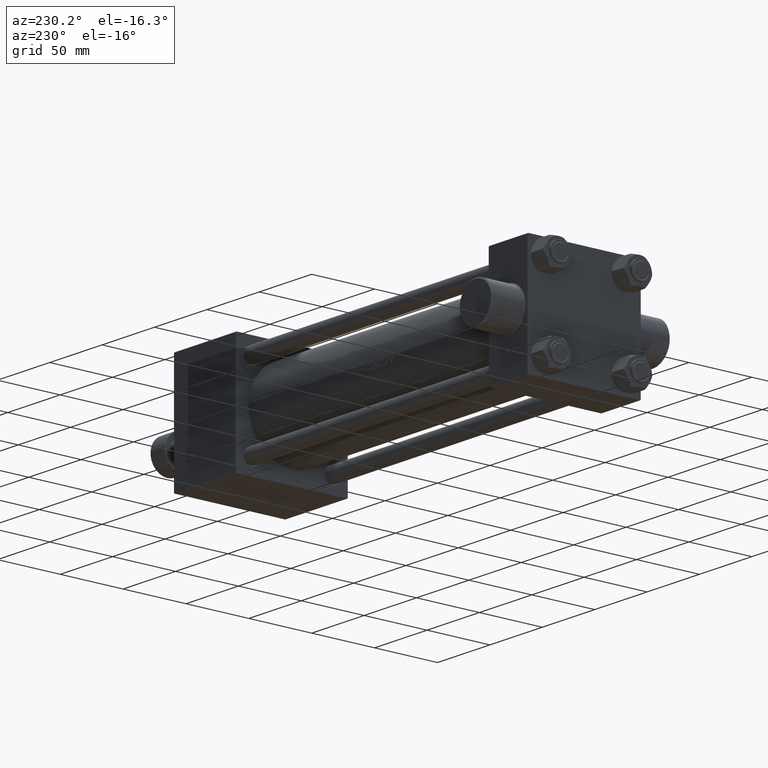
[diagram: clean part render]
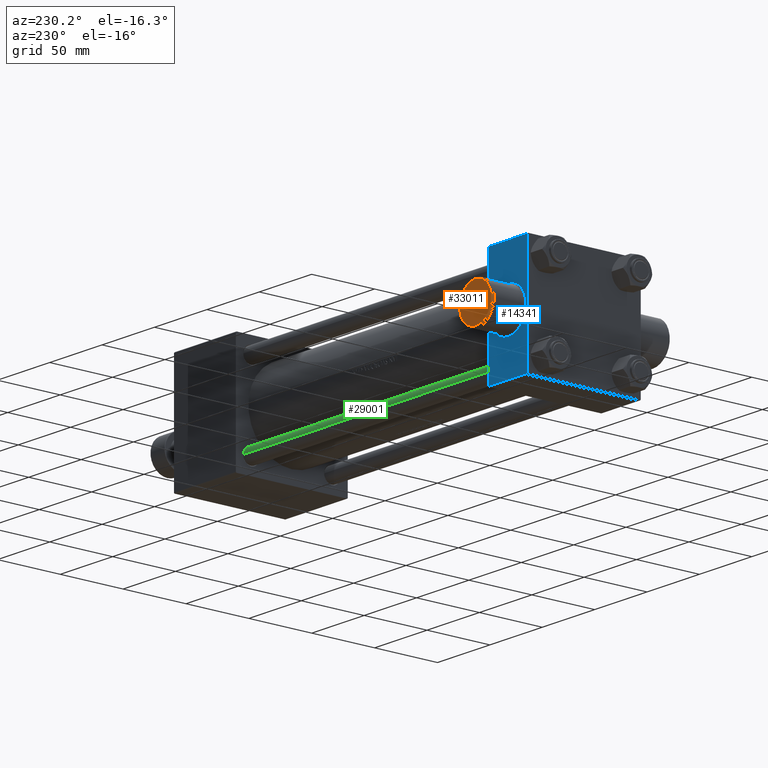
[diagram: same view with three faces highlighted in distinct colors, each labeled with its STEP entity id]
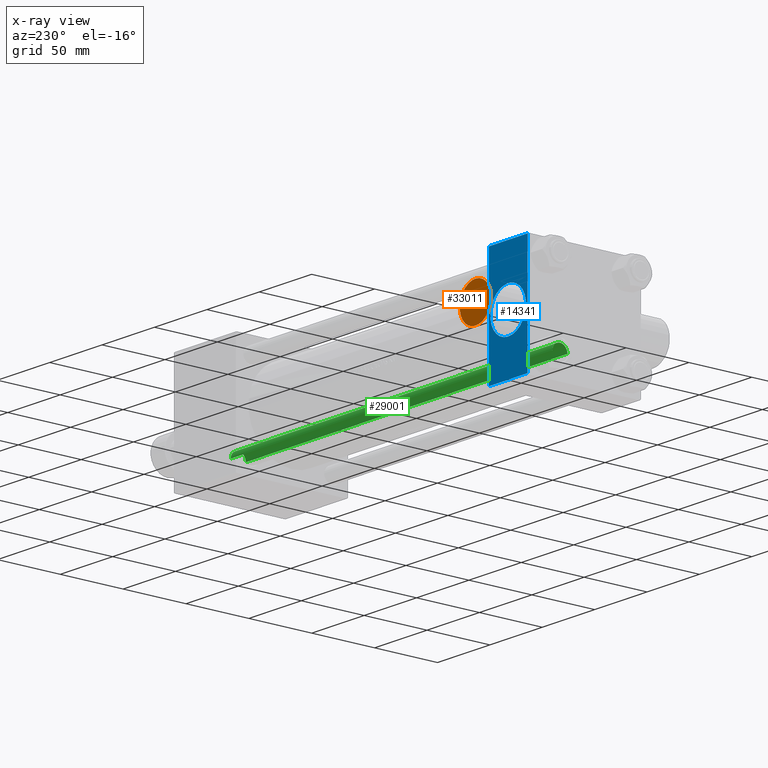
[diagram: x-ray of the same camera — body ghosted, the three highlighted faces saturated]
A machine part, auxiliary view with three faces highlighted in distinct colors.
The next image is the same camera in x-ray (body ghosted, the three faces saturated) — at least one of them is partly hidden behind the body in this view.
Their STEP definitions:

[orange] entity #33011 — the highlighted planar face has unit normal (0, 1, -0).
#117 = CIRCLE ( 'NONE', #36360, 14.99999999999995381 ) ;
#2731 = DIRECTION ( 'NONE',  ( 0.000000000000000000, 1.000000000000000000, -8.673617379884036705E-17 ) ) ;
#6737 = CARTESIAN_POINT ( 'NONE',  ( 18.50000000000000000, 71.00000000000001421, -5.724587470723464989E-15 ) ) ;
#14491 = CARTESIAN_POINT ( 'NONE',  ( 18.50000000000000355, 71.00000000000001421, 14.99999999999994849 ) ) ;
#14664 = CIRCLE ( 'NONE', #43333, 14.99999999999995381 ) ;
#14724 = EDGE_LOOP ( 'NONE', ( #22976, #24390 ) ) ;
#14763 = AXIS2_PLACEMENT_3D ( 'NONE', #6737, #2731, #21161 ) ;
#18132 = VERTEX_POINT ( 'NONE', #36580 ) ;
#19144 = EDGE_CURVE ( 'NONE', #37298, #18132, #117, .T. ) ;
#21161 = DIRECTION ( 'NONE',  ( 0.000000000000000000, -8.673617379884036705E-17, -1.000000000000000000 ) ) ;
#22976 = ORIENTED_EDGE ( 'NONE', *, *, #29235, .T. ) ;
#24390 = ORIENTED_EDGE ( 'NONE', *, *, #19144, .T. ) ;
#28058 = CARTESIAN_POINT ( 'NONE',  ( 18.50000000000000000, 71.00000000000001421, -5.724587470723464989E-15 ) ) ;
#29235 = EDGE_CURVE ( 'NONE', #18132, #37298, #14664, .T. ) ;
#31382 = DIRECTION ( 'NONE',  ( 0.000000000000000000, 1.000000000000000000, -8.673617379884036705E-17 ) ) ;
#31826 = PLANE ( 'NONE',  #14763 ) ;
#33011 = ADVANCED_FACE ( 'NONE', ( #34912 ), #31826, .T. ) ;
#34912 = FACE_OUTER_BOUND ( 'NONE', #14724, .T. ) ;
#35155 = DIRECTION ( 'NONE',  ( 0.000000000000000000, 0.000000000000000000, 1.000000000000000000 ) ) ;
#36360 = AXIS2_PLACEMENT_3D ( 'NONE', #28058, #42469, #35155 ) ;
#36580 = CARTESIAN_POINT ( 'NONE',  ( 18.50000000000000000, 71.00000000000001421, -14.99999999999995914 ) ) ;
#37298 = VERTEX_POINT ( 'NONE', #14491 ) ;
#42010 = CARTESIAN_POINT ( 'NONE',  ( 18.50000000000000000, 71.00000000000001421, -5.724587470723464989E-15 ) ) ;
#42469 = DIRECTION ( 'NONE',  ( 0.000000000000000000, 1.000000000000000000, -8.673617379884036705E-17 ) ) ;
#43333 = AXIS2_PLACEMENT_3D ( 'NONE', #42010, #31382, #45781 ) ;
#45781 = DIRECTION ( 'NONE',  ( 0.000000000000000000, 0.000000000000000000, 1.000000000000000000 ) ) ;

[blue] entity #14341 — the highlighted planar face has unit normal (0, 1, 0).
#1229 = VERTEX_POINT ( 'NONE', #35257 ) ;
#1433 = VERTEX_POINT ( 'NONE', #44186 ) ;
#1494 = DIRECTION ( 'NONE',  ( 0.000000000000000000, 0.000000000000000000, 1.000000000000000000 ) ) ;
#2472 = EDGE_CURVE ( 'NONE', #9400, #5914, #4944, .T. ) ;
#2529 = CARTESIAN_POINT ( 'NONE',  ( 37.00000000000000000, 44.99999999999998579, -44.49999999999995737 ) ) ;
#2845 = FACE_BOUND ( 'NONE', #38691, .T. ) ;
#3771 = CARTESIAN_POINT ( 'NONE',  ( 37.00000000000000000, 44.99999999999998579, 45.00000000000001421 ) ) ;
#3973 = CARTESIAN_POINT ( 'NONE',  ( 18.50000000000000000, 44.99999999999998579, -3.556183125752453755E-15 ) ) ;
#4185 = CARTESIAN_POINT ( 'NONE',  ( 37.00000000000000000, 44.99999999999998579, 44.50000000000001421 ) ) ;
#4944 = CIRCLE ( 'NONE', #26076, 17.00000000000000711 ) ;
#5914 = VERTEX_POINT ( 'NONE', #24140 ) ;
#6829 = LINE ( 'NONE', #46545, #21133 ) ;
#7602 = VECTOR ( 'NONE', #37927, 1000.000000000000000 ) ;
#7818 = VERTEX_POINT ( 'NONE', #19709 ) ;
#8279 = AXIS2_PLACEMENT_3D ( 'NONE', #3771, #28155, #10884 ) ;
#8821 = CARTESIAN_POINT ( 'NONE',  ( 18.50000000000000000, 44.99999999999998579, -3.556183125752453755E-15 ) ) ;
#8876 = CIRCLE ( 'NONE', #44331, 17.00000000000000711 ) ;
#9400 = VERTEX_POINT ( 'NONE', #23858 ) ;
#10832 = ORIENTED_EDGE ( 'NONE', *, *, #42771, .T. ) ;
#10884 = DIRECTION ( 'NONE',  ( 0.000000000000000000, -0.000000000000000000, 1.000000000000000000 ) ) ;
#12619 = DIRECTION ( 'NONE',  ( 0.000000000000000000, -1.000000000000000000, -0.000000000000000000 ) ) ;
#13187 = ORIENTED_EDGE ( 'NONE', *, *, #15882, .T. ) ;
#14341 = ADVANCED_FACE ( 'NONE', ( #2845, #32175 ), #17977, .T. ) ;
#14873 = CARTESIAN_POINT ( 'NONE',  ( 37.00000000000000000, 44.99999999999998579, 45.00000000000001421 ) ) ;
#15882 = EDGE_CURVE ( 'NONE', #46366, #1433, #6829, .T. ) ;
#16411 = VECTOR ( 'NONE', #35457, 1000.000000000000000 ) ;
#17977 = PLANE ( 'NONE',  #8279 ) ;
#18117 = EDGE_CURVE ( 'NONE', #7818, #1229, #34624, .T. ) ;
#19065 = CARTESIAN_POINT ( 'NONE',  ( 0.000000000000000000, 44.99999999999998579, 45.00000000000001421 ) ) ;
#19709 = CARTESIAN_POINT ( 'NONE',  ( 0.000000000000000000, 44.99999999999998579, 44.50000000000001421 ) ) ;
#21133 = VECTOR ( 'NONE', #21257, 1000.000000000000000 ) ;
#21257 = DIRECTION ( 'NONE',  ( -1.000000000000000000, 0.000000000000000000, 0.000000000000000000 ) ) ;
#22449 = EDGE_CURVE ( 'NONE', #7818, #1433, #29014, .T. ) ;
#22929 = ORIENTED_EDGE ( 'NONE', *, *, #41933, .T. ) ;
#23858 = CARTESIAN_POINT ( 'NONE',  ( 18.50000000000000000, 44.99999999999998579, 17.00000000000000355 ) ) ;
#24049 = ORIENTED_EDGE ( 'NONE', *, *, #2472, .T. ) ;
#24140 = CARTESIAN_POINT ( 'NONE',  ( 18.50000000000000355, 44.99999999999998579, -17.00000000000001066 ) ) ;
#26076 = AXIS2_PLACEMENT_3D ( 'NONE', #8821, #12619, #1494 ) ;
#28155 = DIRECTION ( 'NONE',  ( -0.000000000000000000, 1.000000000000000000, 0.000000000000000000 ) ) ;
#29014 = LINE ( 'NONE', #19065, #36322 ) ;
#29282 = DIRECTION ( 'NONE',  ( 0.000000000000000000, 0.000000000000000000, 1.000000000000000000 ) ) ;
#32175 = FACE_OUTER_BOUND ( 'NONE', #33295, .T. ) ;
#33073 = DIRECTION ( 'NONE',  ( 0.000000000000000000, -1.000000000000000000, -0.000000000000000000 ) ) ;
#33295 = EDGE_LOOP ( 'NONE', ( #10832, #13187, #38025, #36565 ) ) ;
#34624 = LINE ( 'NONE', #4185, #7602 ) ;
#35257 = CARTESIAN_POINT ( 'NONE',  ( 37.00000000000000000, 44.99999999999998579, 44.50000000000001421 ) ) ;
#35457 = DIRECTION ( 'NONE',  ( 0.000000000000000000, 0.000000000000000000, -1.000000000000000000 ) ) ;
#36322 = VECTOR ( 'NONE', #40583, 1000.000000000000000 ) ;
#36565 = ORIENTED_EDGE ( 'NONE', *, *, #18117, .T. ) ;
#37927 = DIRECTION ( 'NONE',  ( 1.000000000000000000, 0.000000000000000000, 0.000000000000000000 ) ) ;
#38025 = ORIENTED_EDGE ( 'NONE', *, *, #22449, .F. ) ;
#38691 = EDGE_LOOP ( 'NONE', ( #24049, #22929 ) ) ;
#40583 = DIRECTION ( 'NONE',  ( 0.000000000000000000, 0.000000000000000000, -1.000000000000000000 ) ) ;
#41933 = EDGE_CURVE ( 'NONE', #5914, #9400, #8876, .T. ) ;
#42771 = EDGE_CURVE ( 'NONE', #1229, #46366, #42999, .T. ) ;
#42999 = LINE ( 'NONE', #14873, #16411 ) ;
#44186 = CARTESIAN_POINT ( 'NONE',  ( 0.000000000000000000, 44.99999999999998579, -44.49999999999995737 ) ) ;
#44331 = AXIS2_PLACEMENT_3D ( 'NONE', #3973, #33073, #29282 ) ;
#46366 = VERTEX_POINT ( 'NONE', #2529 ) ;
#46545 = CARTESIAN_POINT ( 'NONE',  ( 37.00000000000000000, 44.99999999999998579, -44.49999999999998579 ) ) ;

[green] entity #29001 — the highlighted cylindrical surface (edge-blend (fillet) strip) has radius 6 mm, axis along (1, 0, 0).
#437 = VERTEX_POINT ( 'NONE', #26159 ) ;
#778 = ORIENTED_EDGE ( 'NONE', *, *, #18400, .F. ) ;
#2805 = CARTESIAN_POINT ( 'NONE',  ( 0.000000000000000000, 0.000000000000000000, 308.0000000000000000 ) ) ;
#3556 = DIRECTION ( 'NONE',  ( 0.000000000000000000, 0.000000000000000000, -1.000000000000000000 ) ) ;
#4175 = AXIS2_PLACEMENT_3D ( 'NONE', #41228, #42855, #13808 ) ;
#5547 = VERTEX_POINT ( 'NONE', #23022 ) ;
#5749 = CARTESIAN_POINT ( 'NONE',  ( 6.000000000000000888, 7.347880794884120722E-16, 0.5000000000000559552 ) ) ;
#7884 = VERTEX_POINT ( 'NONE', #5749 ) ;
#8046 = DIRECTION ( 'NONE',  ( 1.000000000000000000, 0.000000000000000000, 0.000000000000000000 ) ) ;
#10731 = EDGE_LOOP ( 'NONE', ( #19916, #13441, #36763, #778 ) ) ;
#11076 = DIRECTION ( 'NONE',  ( -0.000000000000000000, -0.000000000000000000, -1.000000000000000000 ) ) ;
#12588 = DIRECTION ( 'NONE',  ( -0.000000000000000000, -0.000000000000000000, -1.000000000000000000 ) ) ;
#12715 = AXIS2_PLACEMENT_3D ( 'NONE', #14689, #3556, #8046 ) ;
#13441 = ORIENTED_EDGE ( 'NONE', *, *, #28420, .T. ) ;
#13465 = CARTESIAN_POINT ( 'NONE',  ( 6.000000000000000888, 7.347880794884120722E-16, 308.0000000000000000 ) ) ;
#13713 = DIRECTION ( 'NONE',  ( -1.000000000000000000, 0.000000000000000000, 0.000000000000000000 ) ) ;
#13808 = DIRECTION ( 'NONE',  ( 1.000000000000000000, 0.000000000000000000, 0.000000000000000000 ) ) ;
#14689 = CARTESIAN_POINT ( 'NONE',  ( 0.000000000000000000, 0.000000000000000000, 307.4999999999999432 ) ) ;
#15376 = VECTOR ( 'NONE', #27873, 1000.000000000000000 ) ;
#18400 = EDGE_CURVE ( 'NONE', #437, #5547, #19896, .T. ) ;
#19896 = LINE ( 'NONE', #30086, #45366 ) ;
#19916 = ORIENTED_EDGE ( 'NONE', *, *, #43447, .T. ) ;
#20787 = CIRCLE ( 'NONE', #4175, 6.000000000000000888 ) ;
#22465 = CIRCLE ( 'NONE', #12715, 6.000000000000000888 ) ;
#23022 = CARTESIAN_POINT ( 'NONE',  ( -6.000000000000000888, 0.000000000000000000, 0.5000000000000559552 ) ) ;
#24792 = FACE_OUTER_BOUND ( 'NONE', #10731, .T. ) ;
#26159 = CARTESIAN_POINT ( 'NONE',  ( -6.000000000000000888, 0.000000000000000000, 307.4999999999999432 ) ) ;
#27873 = DIRECTION ( 'NONE',  ( -0.000000000000000000, -0.000000000000000000, -1.000000000000000000 ) ) ;
#28420 = EDGE_CURVE ( 'NONE', #29737, #7884, #41813, .T. ) ;
#29001 = ADVANCED_FACE ( 'NONE', ( #24792 ), #31900, .T. ) ;
#29737 = VERTEX_POINT ( 'NONE', #34575 ) ;
#30086 = CARTESIAN_POINT ( 'NONE',  ( -6.000000000000000888, 0.000000000000000000, 308.0000000000000000 ) ) ;
#31900 = CYLINDRICAL_SURFACE ( 'NONE', #32009, 6.000000000000000888 ) ;
#32009 = AXIS2_PLACEMENT_3D ( 'NONE', #2805, #11076, #13713 ) ;
#33301 = EDGE_CURVE ( 'NONE', #7884, #5547, #20787, .T. ) ;
#34575 = CARTESIAN_POINT ( 'NONE',  ( 6.000000000000000888, 7.347880794884120722E-16, 307.4999999999999432 ) ) ;
#36763 = ORIENTED_EDGE ( 'NONE', *, *, #33301, .T. ) ;
#41228 = CARTESIAN_POINT ( 'NONE',  ( 0.000000000000000000, 0.000000000000000000, 0.5000000000000559552 ) ) ;
#41813 = LINE ( 'NONE', #13465, #15376 ) ;
#42855 = DIRECTION ( 'NONE',  ( -0.000000000000000000, -0.000000000000000000, 1.000000000000000000 ) ) ;
#43447 = EDGE_CURVE ( 'NONE', #437, #29737, #22465, .T. ) ;
#45366 = VECTOR ( 'NONE', #12588, 1000.000000000000000 ) ;